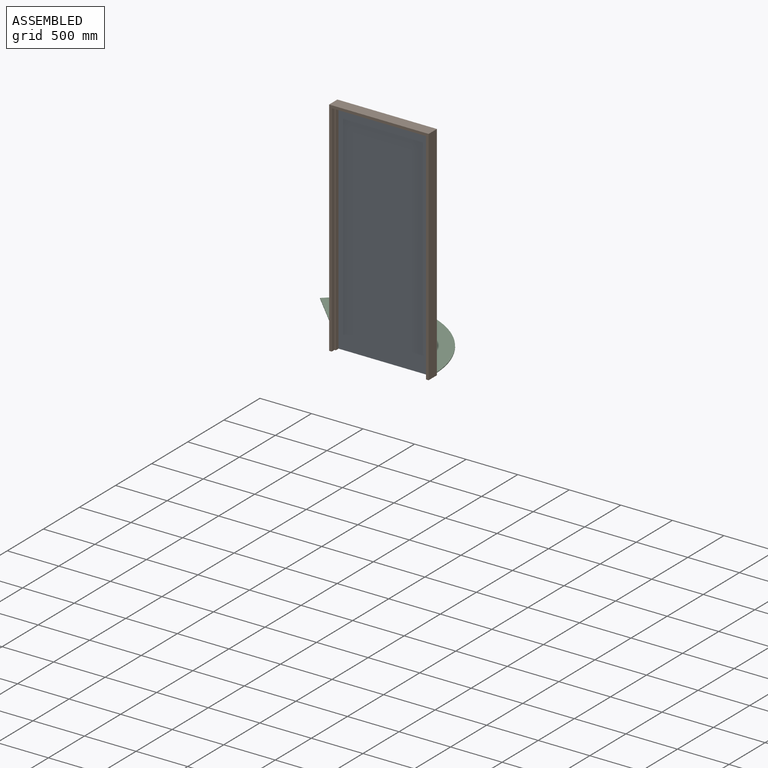
[diagram: assembled view]
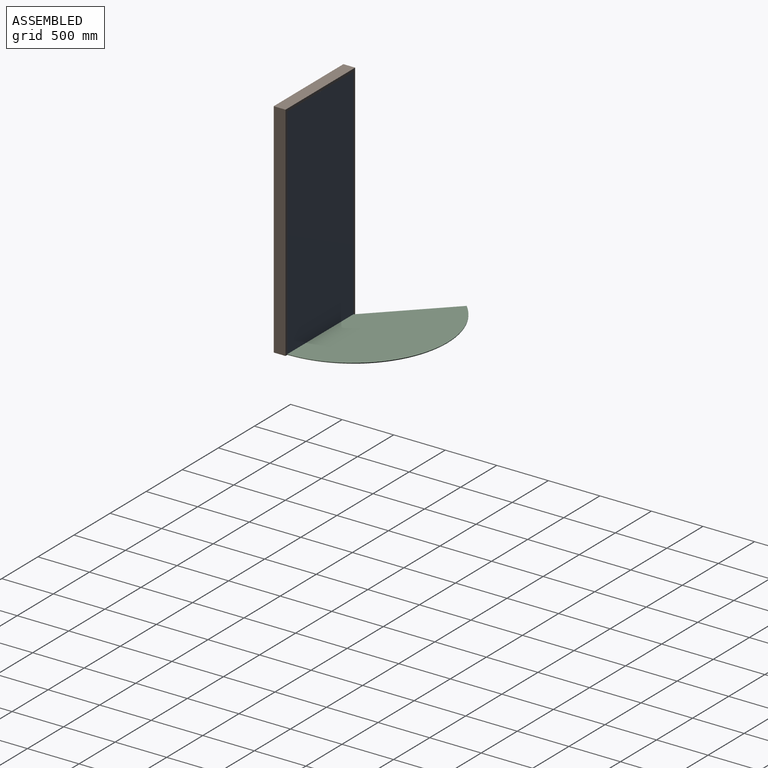
[diagram: assembled view, second angle]
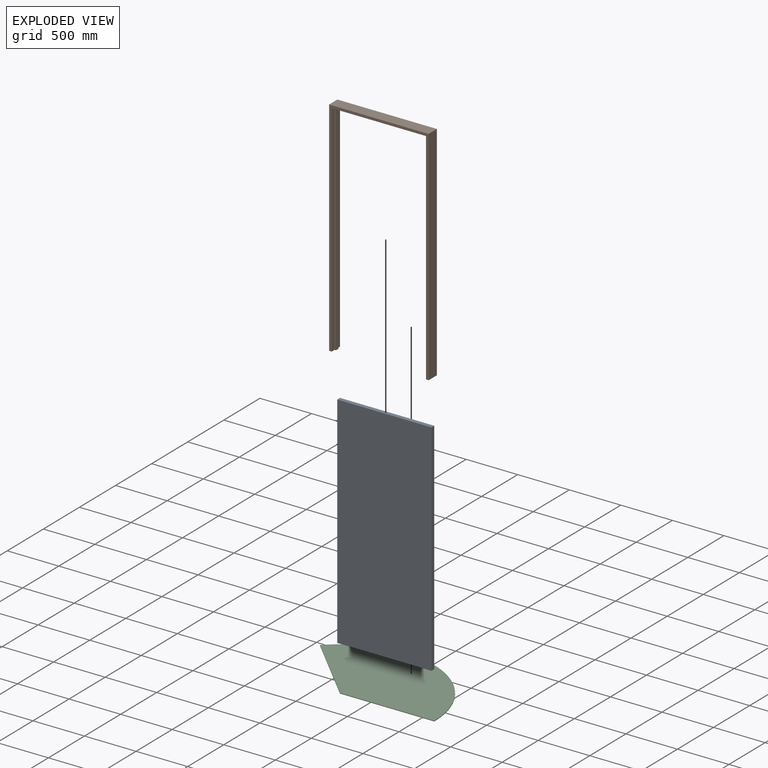
[diagram: exploded view]
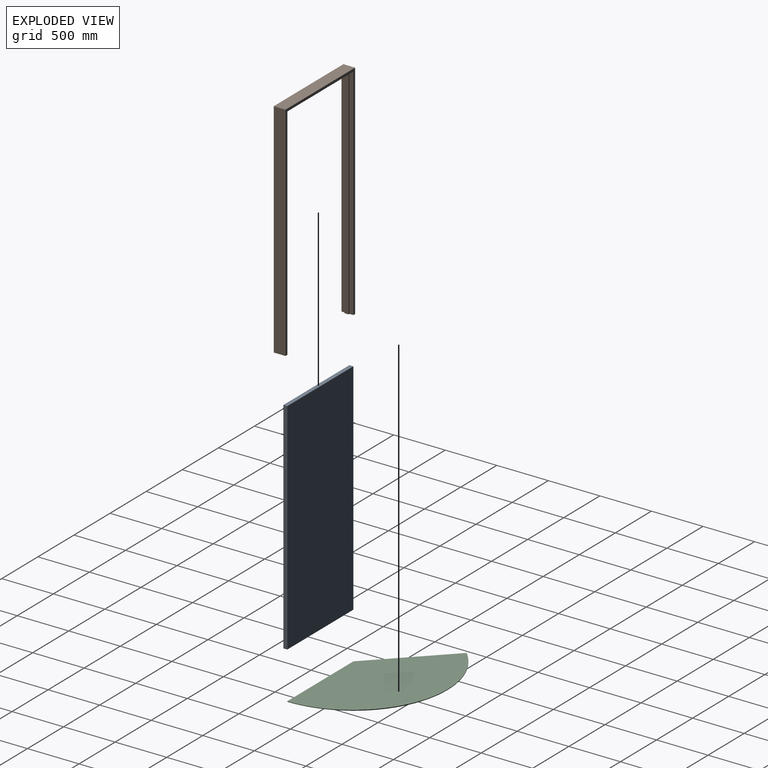
[diagram: exploded view, second angle]
ASSEMBLY  parts=3 mates=3
PART A: 6 faces, bbox 914.4x38.1x2133.6 mm
  f0: plane 2133.6x38.1mm, normal (-1,0,0), area 81290.2mm2, adj f1,f3,f4,f5
  f1: plane 2133.6x914.4mm, normal (0,-1,0), area 1950963.8mm2, adj f0,f2,f4,f5
  f2: plane 2133.6x38.1mm, normal (1,0,0), area 81290.2mm2, adj f1,f3,f4,f5
  f3: plane 2133.6x914.4mm, normal (0,1,0), area 1950963.8mm2, adj f0,f2,f4,f5
  f4: plane 914.4x38.1mm, normal (0,0,1), area 34838.6mm2, adj f0,f1,f2,f3
  f5: plane 914.4x38.1mm, normal (0,0,-1), area 34838.6mm2, adj f0,f1,f2,f3
PART B: 18 faces, bbox 965.2x114.3x2159 mm
  f0: plane 2159x965.2mm, normal (0,1,0), area 132903mm2, adj f1,f7,f8,f10,f11,f14,f15,f17
  f1: plane 2133.6x38.1mm, normal (-1,0,0), area 81290.2mm2, adj f0,f2,f8,f15
  f2: plane 2133.6x914.4mm, normal (0,1,0), area 65483.7mm2, adj f1,f3,f8,f9,f10,f13,f14,f15
  f3: plane 2120.9x38.1mm, normal (-1,0,0), area 80806.3mm2, adj f2,f4,f8,f9
  f4: plane 2133.6x914.4mm, normal (0,-1,0), area 65483.7mm2, adj f3,f5,f8,f9,f12,f13,f14,f16
  f5: plane 2133.6x38.1mm, normal (-1,0,0), area 81290.2mm2, adj f4,f6,f8,f16
  f6: plane 2159x965.2mm, normal (0,-1,0), area 132903mm2, adj f5,f7,f8,f11,f12,f14,f16,f17
  f7: plane 2159x114.3mm, normal (1,0,0), area 246773.7mm2, adj f0,f6,f8,f17
  f8: plane 114.3x38.1mm, normal (0,0,-1), area 3387.1mm2, adj f0,f1,f2,f3,f4,f5,f6,f7
  f9: plane 889x38.1mm, normal (0,0,-1), area 33870.9mm2, adj f2,f3,f4,f13
  f10: plane 2133.6x38.1mm, normal (1,0,0), area 81290.2mm2, adj f0,f2,f14,f15
  f11: plane 2159x114.3mm, normal (-1,0,0), area 246773.7mm2, adj f0,f6,f14,f17
  f12: plane 2133.6x38.1mm, normal (1,0,0), area 81290.2mm2, adj f4,f6,f14,f16
  f13: plane 2120.9x38.1mm, normal (1,0,0), area 80806.3mm2, adj f2,f4,f9,f14
  f14: plane 114.3x38.1mm, normal (0,0,-1), area 3387.1mm2, adj f0,f2,f4,f6,f10,f11,f12,f13
  f15: plane 914.4x38.1mm, normal (0,0,-1), area 34838.6mm2, adj f0,f1,f2,f10
  f16: plane 914.4x38.1mm, normal (0,0,-1), area 34838.6mm2, adj f4,f5,f6,f12
  f17: plane 965.2x114.3mm, normal (0,0,1), area 110322.4mm2, adj f0,f6,f7,f11
PART C: 5 faces, bbox 1561x914.4x6.4 mm
  f0: cylinder r=914.4mm len=1560.98mm, axis (0,0,-1), area 13681.1mm2, adj f1,f2,f3,f4
  f1: plane 914.4x6.35mm, normal (0,-1,0), area 5806.4mm2, adj f0,f2,f3,f4
  f2: plane 646.58x646.58mm, normal (0.71,-0.71,0), area 5806.4mm2, adj f0,f1,f3,f4
  f3: plane 1560.98x914.4mm, normal (0,0,1), area 985039.3mm2, adj f0,f1,f2
  f4: plane 1560.98x914.4mm, normal (0,0,-1), area 985039.3mm2, adj f0,f1,f2
PLACE A rot(axis=(0.03,0,-1),0deg) t=(733.4,184.24,-273.39)mm
PLACE B t=(733.4,184.24,-273.39)mm fixed
PLACE C rot(axis=(0,0,-1),45deg) t=(-760.92,-735.8,-273.39)mm
MATE revolute B.f14 <-> C.f0  axis (0,0,-1) through (758.8,241.39,-273.39)mm
MATE revolute A.f5 <-> B.f14  axis (0,0,-1) through (758.8,241.39,-273.39)mm
MATE revolute B.f8 <-> C.f4  axis (0,0,-1) through (1673.2,241.39,-273.39)mm
